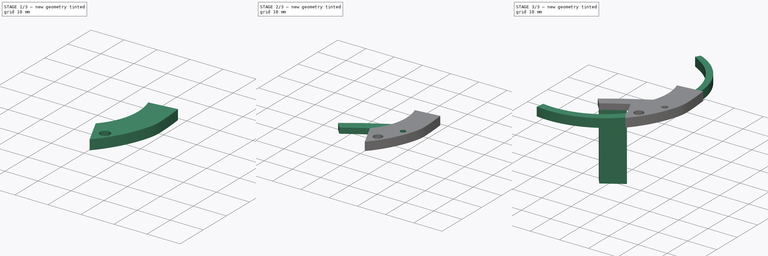
[diagram: build sequence overview — one tinted view per stage of 3, left to right]
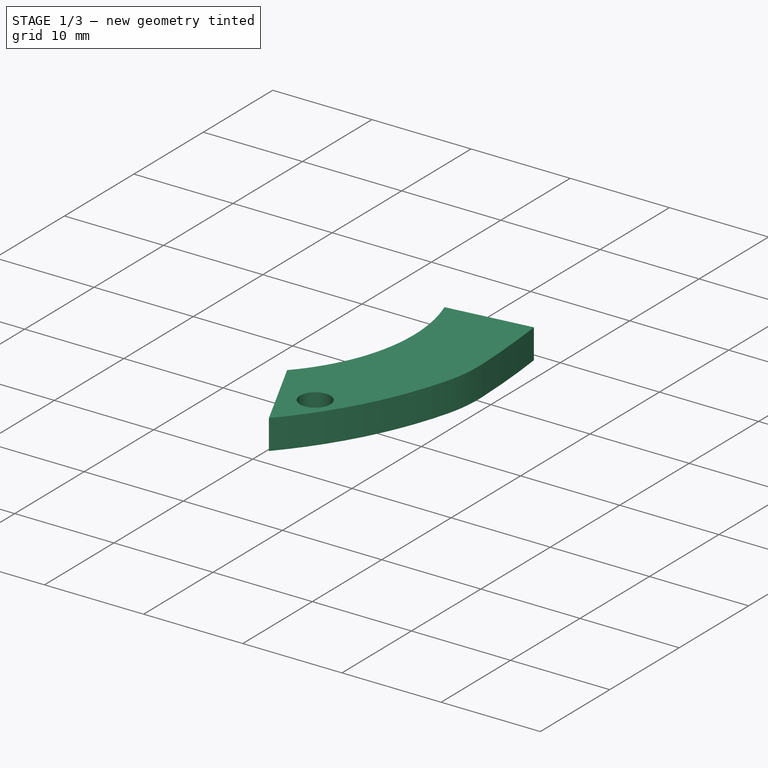
[diagram: stage 1 of 3 — iso view after this stage's code; geometry added in this stage tinted green]
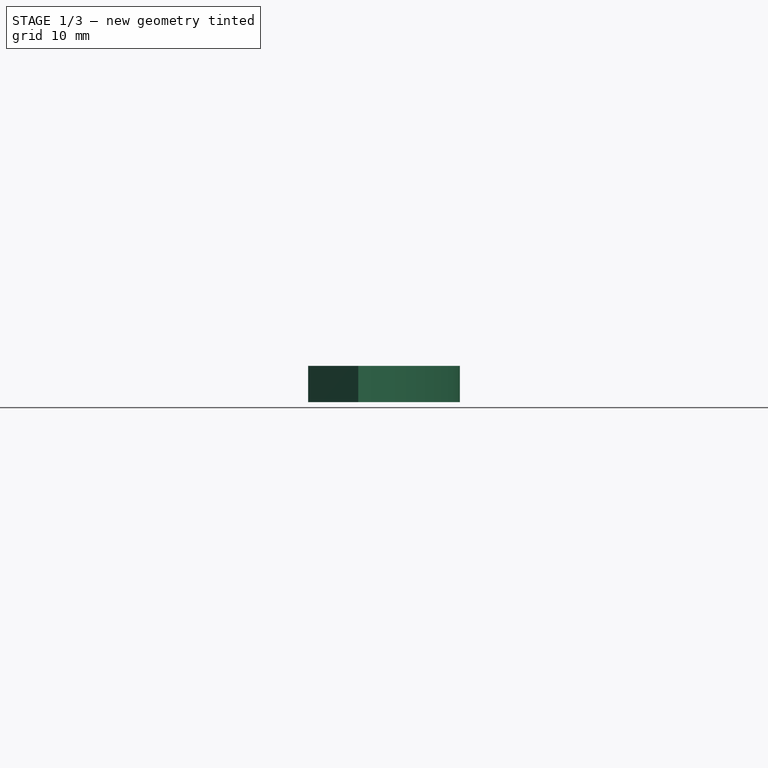
[diagram: stage 1 of 3 — front view after this stage's code; geometry added in this stage tinted green]
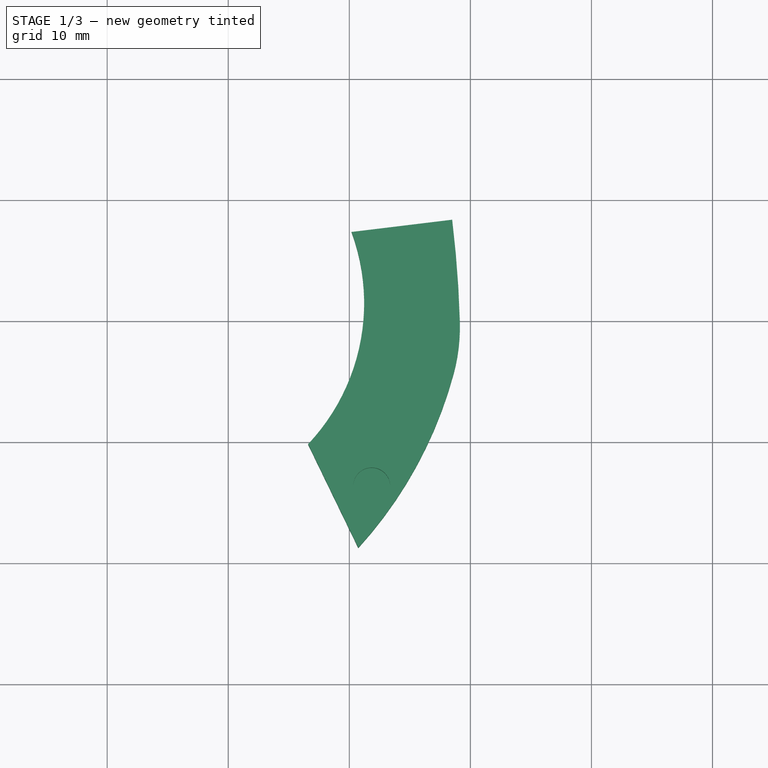
[diagram: stage 1 of 3 — top view after this stage's code; geometry added in this stage tinted green]
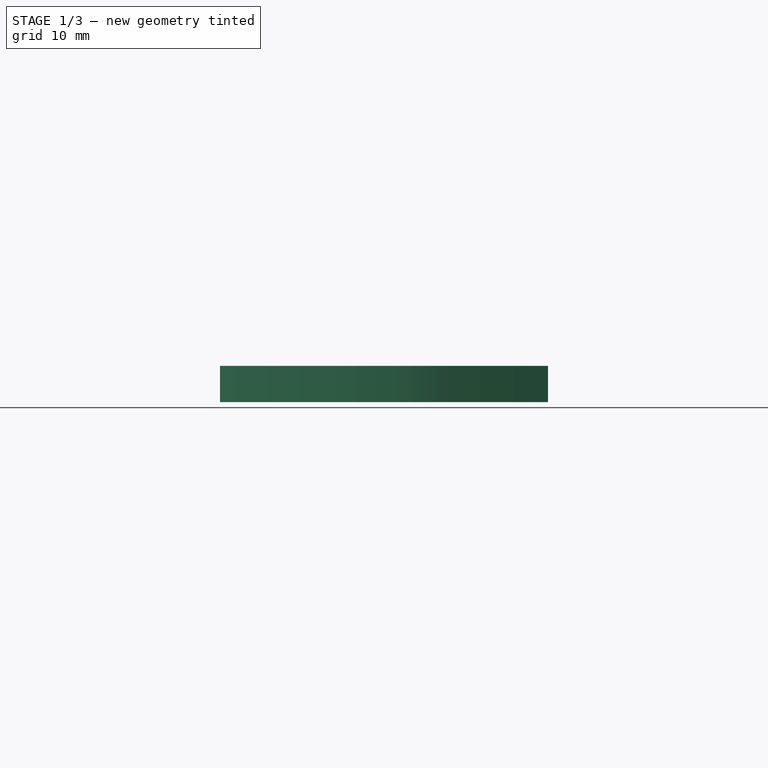
[diagram: stage 1 of 3 — right view after this stage's code; geometry added in this stage tinted green]
FCSTD DOCUMENT  (FreeCAD 0.21R33771 (Git))
Label: new_aperture_hand_7
License: All rights reserved
LicenseURL: http://en.wikipedia.org/wiki/All_rights_reserved
objects: Sketcher::SketchObject×7, PartDesign::Pad×4, PartDesign::Pocket×3, Image::ImagePlane×1, PartDesign::Body×1
note: 22 computed .brp shape members not serialized (recipe doc carries the construction recipe); baked Part::Feature solids carry a one-line shape summary decoded from their .brp

FEATURE [Sketcher::SketchObject] Sketch
  FullyConstrained = false
  MapMode = 5
  Support = -> [XY_Plane]
  sketch-geometry (6):
    g0: LineSegment StartX=20.1827 StartY=7.34692 StartZ=0 EndX=28.4959 EndY=8.3592 EndZ=0
    g1: ArcOfCircle CenterX=-62.7168 CenterY=-2.74758 CenterZ=0 NormalX=0 NormalY=0 NormalZ=1 AngleXU=0 Radius=91.8865 StartAngle=0.0297337 EndAngle=0.121171
    g2: ArcOfCircle CenterX=14.2037 CenterY=-0.459773 CenterZ=0 NormalX=0 NormalY=0 NormalZ=1 AngleXU=0 Radius=14.932 StartAngle=6.01889 EndAngle=6.31292
    g3: ArcOfCircle CenterX=-5.09405 CenterY=4.76261 CenterZ=0 NormalX=0 NormalY=0 NormalZ=1 AngleXU=0 Radius=34.9239 StartAngle=5.54514 EndAngle=6.01889
    g4: ArcOfCircle CenterX=4.2118 CenterY=1.48361 CenterZ=0 NormalX=0 NormalY=0 NormalZ=1 AngleXU=0 Radius=17.0132 StartAngle=5.5276 EndAngle=6.63503
    g5: LineSegment StartX=16.5952 StartY=-10.1826 StartZ=0 EndX=20.7422 EndY=-18.7356 EndZ=0
  constraints (6):
    c: Perpendicular(g0,g1) = 1.5708
    c: Tangent(g1,g2) = -1.5708
    c: Tangent(g2,g3) = -1.5708
    c: Coincident(g4,g0)
    c: Coincident(g5,g4)
    c: Coincident(g5,g3)
FEATURE [Image::ImagePlane] PXL_20241118_230027989
  XSize = 121.033
  YSize = 91.1307
FEATURE [PartDesign::Pad] Pad
  Direction = (0,0,1)
  Length = 3
  Length2 = 10
  Profile = -> Sketch
  ReferenceAxis = -> Sketch [N_Axis]
  Type = 0
FEATURE [Sketcher::SketchObject] Sketch001
  FullyConstrained = false
  MapMode = 5
  Support = -> [XY_Plane]
  sketch-geometry (1):
    g0: Circle CenterX=21.8259 CenterY=-13.6833 CenterZ=0 NormalX=0 NormalY=0 NormalZ=1 AngleXU=0 Radius=1.06141
FEATURE [Sketcher::SketchObject] Sketch002
  AttachmentOffset = pos=(0,0,3) rot=(0,0,1;0rad)
  FullyConstrained = false
  MapMode = 5
  Placement = pos=(0,0,3) rot=(0,0,1;0rad)
  Support = -> [XY_Plane]
  sketch-geometry (1):
    g0: Circle CenterX=21.8468 CenterY=-13.6429 CenterZ=0 NormalX=0 NormalY=0 NormalZ=1 AngleXU=0 Radius=1.52775
FEATURE [PartDesign::Pocket] Pocket001
  BaseFeature = -> Pad
  Direction = (0,0,-1)
  Length = 2
  Length2 = 5
  Profile = -> Sketch002
  ReferenceAxis = -> Sketch002 [N_Axis]
  Type = 0
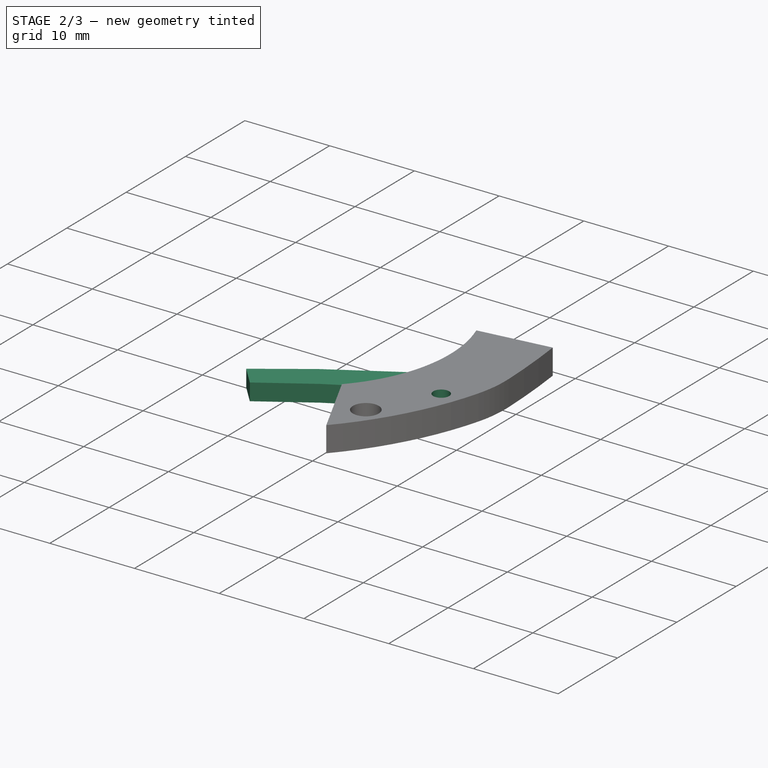
[diagram: stage 2 of 3 — iso view after this stage's code; geometry added in this stage tinted green]
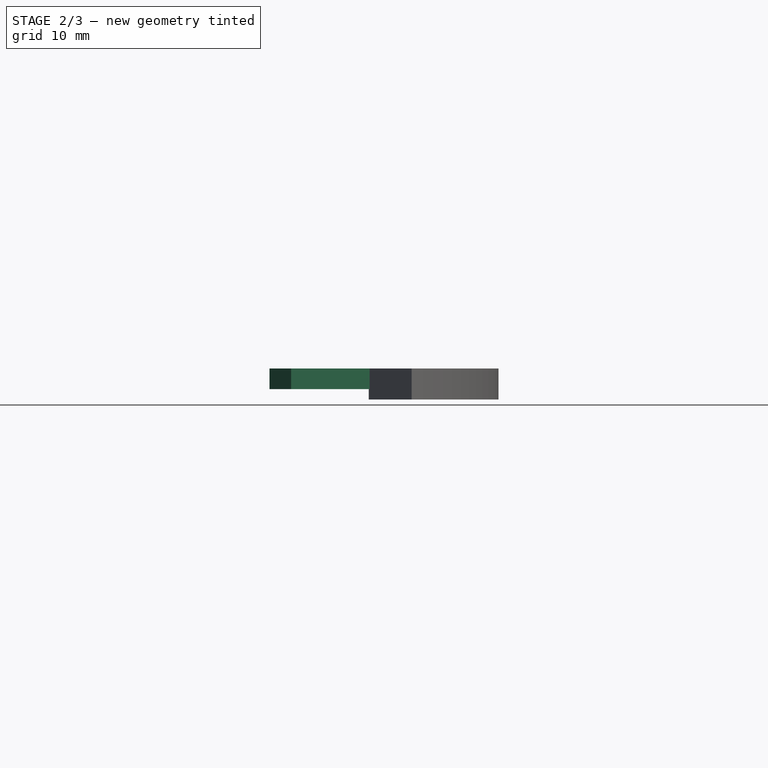
[diagram: stage 2 of 3 — front view after this stage's code; geometry added in this stage tinted green]
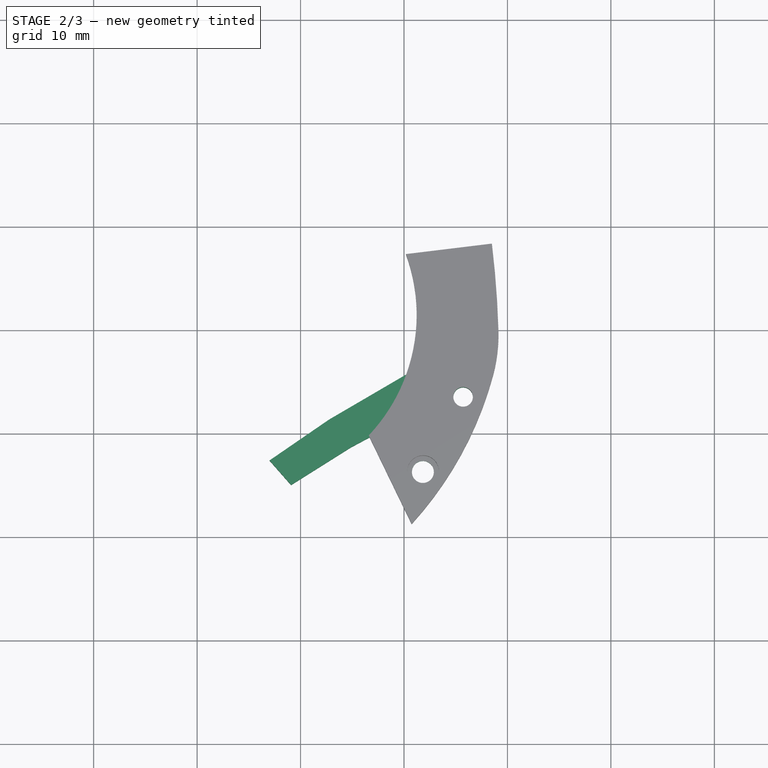
[diagram: stage 2 of 3 — top view after this stage's code; geometry added in this stage tinted green]
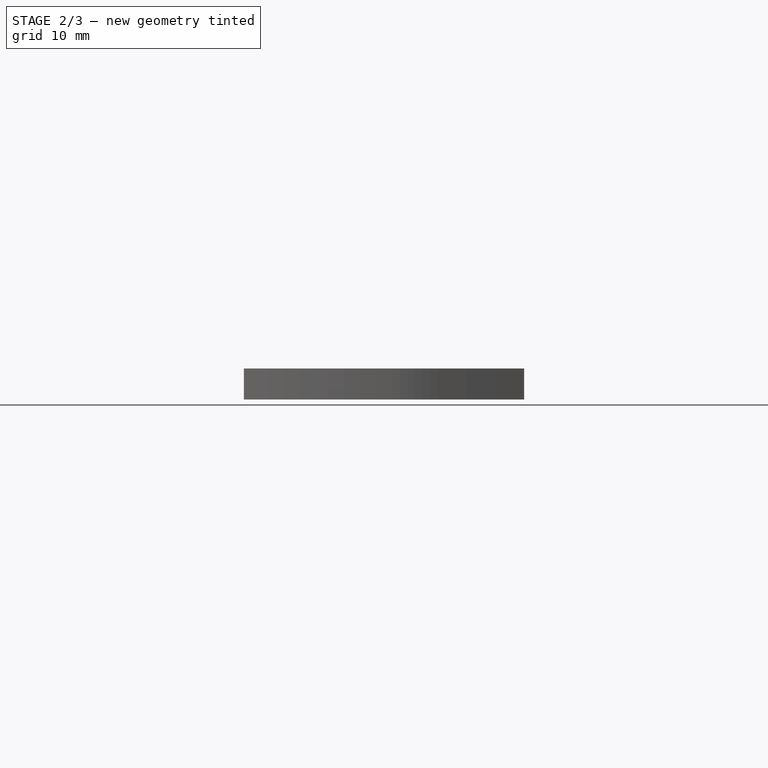
[diagram: stage 2 of 3 — right view after this stage's code; geometry added in this stage tinted green]
FEATURE [Sketcher::SketchObject] Sketch003
  FullyConstrained = false
  MapMode = 5
  Support = -> [XY_Plane]
  sketch-geometry (1):
    g0: Circle CenterX=25.7123 CenterY=-6.46037 CenterZ=0 NormalX=0 NormalY=0 NormalZ=1 AngleXU=0 Radius=0.944493
FEATURE [PartDesign::Pocket] Pocket002
  BaseFeature = -> Pocket001
  Direction = (0,0,-1)
  Length = 0
  Length2 = 5
  Profile = -> Sketch003
  ReferenceAxis = -> Sketch003 [N_Axis]
  Type = 3
  UpToFace = -> Pocket001 [Face5]
FEATURE [Sketcher::SketchObject] Sketch008
  FullyConstrained = false
  MapMode = 5
  Placement = pos=(0,0,3) rot=(0,0,1;0rad)
  sketch-geometry (6):
    g0: LineSegment StartX=7.00149 StartY=-12.6021 StartZ=0 EndX=9.08626 EndY=-14.9748 EndZ=0
    g1: LineSegment StartX=9.08626 StartY=-14.9748 StartZ=0 EndX=14.8557 EndY=-11.3454 EndZ=0
    g2: LineSegment StartX=14.8557 StartY=-11.3454 StartZ=0 EndX=22.7718 EndY=-7.10086 EndZ=0
    g3: LineSegment StartX=22.7718 StartY=-7.10086 StartZ=0 EndX=20.944 EndY=-3.86693 EndZ=0
    g4: LineSegment StartX=20.944 StartY=-3.86693 StartZ=0 EndX=12.7508 EndY=-8.65406 EndZ=0
    g5: LineSegment StartX=12.7508 StartY=-8.65406 StartZ=0 EndX=7.00149 EndY=-12.6021 EndZ=0
  constraints (6):
    c: Coincident(g0,g1)
    c: Coincident(g1,g2)
    c: Coincident(g2,g3)
    c: Coincident(g3,g4)
    c: Coincident(g4,g5)
    c: Coincident(g5,g0)
FEATURE [PartDesign::Pad] Pad004
  BaseFeature = -> Pocket002
  Direction = (0,0,-1)
  Length = 2
  Length2 = 10
  Profile = -> Sketch008
  ReferenceAxis = -> Sketch008 [N_Axis]
  Type = 0
  UseCustomVector = true
FEATURE [PartDesign::Pocket] Pocket
  BaseFeature = -> Pad004
  Direction = (0,0,-1)
  Length = 0
  Length2 = 5
  Profile = -> Sketch001
  ReferenceAxis = -> Sketch001 [N_Axis]
  Type = 3
  UpToFace = -> Pad004 [Face5]
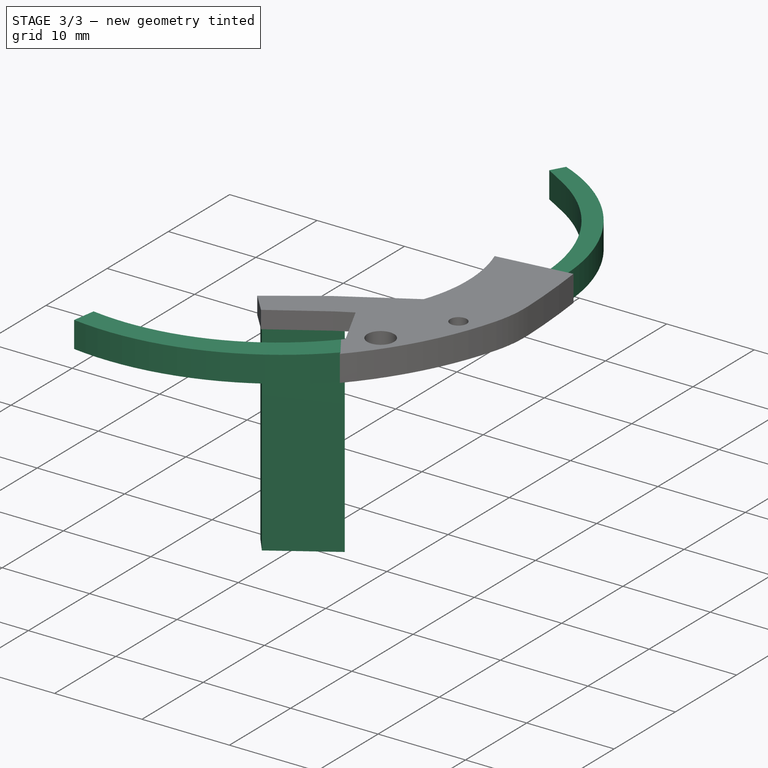
[diagram: stage 3 of 3 — iso view after this stage's code; geometry added in this stage tinted green]
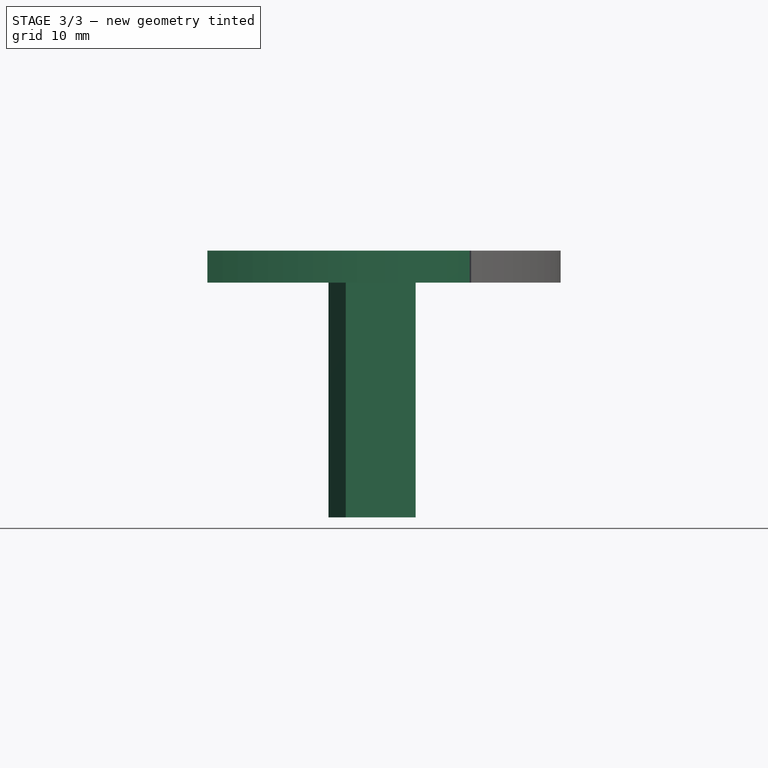
[diagram: stage 3 of 3 — front view after this stage's code; geometry added in this stage tinted green]
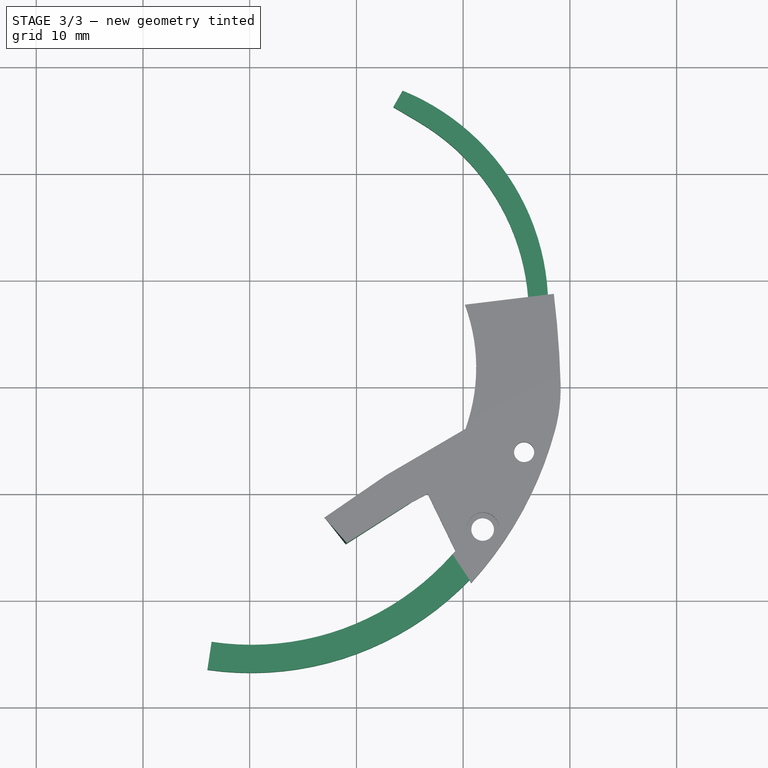
[diagram: stage 3 of 3 — top view after this stage's code; geometry added in this stage tinted green]
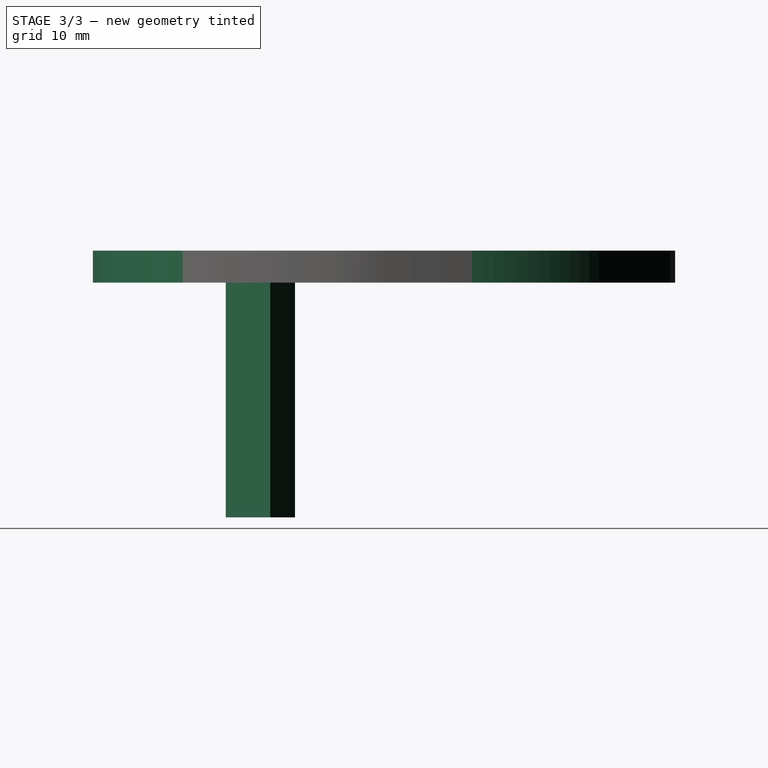
[diagram: stage 3 of 3 — right view after this stage's code; geometry added in this stage tinted green]
FEATURE [Sketcher::SketchObject] Sketch009
  FullyConstrained = false
  MapMode = 5
  Placement = pos=(0,0,3) rot=(0,0,1;0rad)
  Support = -> [Pocket]
  sketch-geometry (4):
    g0: LineSegment StartX=7.3786 StartY=-12.6425 StartZ=0 EndX=9.00304 EndY=-14.7019 EndZ=0
    g1: LineSegment StartX=9.00304 StartY=-14.7019 StartZ=0 EndX=15.552 EndY=-10.532 EndZ=0
    g2: LineSegment StartX=15.552 StartY=-10.532 StartZ=0 EndX=13.902 EndY=-8.21687 EndZ=0
    g3: LineSegment StartX=13.902 StartY=-8.21687 StartZ=0 EndX=7.3786 EndY=-12.6425 EndZ=0
  constraints (4):
    c: Coincident(g0,g1)
    c: Coincident(g1,g2)
    c: Coincident(g2,g3)
    c: Coincident(g3,g0)
FEATURE [PartDesign::Pad] Pad005
  BaseFeature = -> Pocket
  Direction = (0,0,-1)
  Length = 25
  Length2 = 10
  Profile = -> Sketch009
  ReferenceAxis = -> Sketch009 [N_Axis]
  Type = 0
  UseCustomVector = true
FEATURE [Sketcher::SketchObject] Sketch010
  FullyConstrained = false
  MapMode = 5
  Support = -> [XY_Plane]
  sketch-geometry (12):
    g0: LineSegment StartX=26.6482 StartY=0.890898 StartZ=0 EndX=26.0845 EndY=8.05968 EndZ=0
    g1: ArcOfCircle CenterX=5.19927 CenterY=6.41737 CenterZ=0 NormalX=0 NormalY=0 NormalZ=1 AngleXU=0 Radius=20.9497 StartAngle=0.0784736 EndAngle=1.03598
    g2: LineSegment StartX=15.877 StartY=24.4417 StartZ=0 EndX=13.4576 EndY=25.875 EndZ=0
    g3: LineSegment StartX=13.4576 StartY=25.875 StartZ=0 EndX=14.3265 EndY=27.406 EndZ=0
    g4: LineSegment StartX=27.9411 StartY=8.21638 StartZ=0 EndX=28.3058 EndY=0.811161 EndZ=0
    g5: LineSegment StartX=28.3058 StartY=0.811161 StartZ=0 EndX=26.6482 EndY=0.890898 EndZ=0
    g6: ArcOfCircle CenterX=0.12064 CenterY=1.28805 CenterZ=0 NormalX=0 NormalY=0 NormalZ=1 AngleXU=0 Radius=28.4395 StartAngle=4.56819 EndAngle=5.6022
    g7: LineSegment StartX=-3.96608 StartY=-26.8563 StartZ=0 EndX=-3.57133 EndY=-24.247 EndZ=0
    g8: ArcOfCircle CenterX=0.182173 CenterY=0.563289 CenterZ=0 NormalX=0 NormalY=0 NormalZ=1 AngleXU=0 Radius=25.0926 StartAngle=4.56224 EndAngle=5.56011
    g9: LineSegment StartX=18.996 StartY=-16.0403 StartZ=0 EndX=20.0749 EndY=-14.8178 EndZ=0
    g10: LineSegment StartX=20.0749 StartY=-14.8178 StartZ=0 EndX=22.2168 EndY=-16.6162 EndZ=0
    g11: ArcOfCircle CenterX=6.0932 CenterY=7.14024 CenterZ=0 NormalX=0 NormalY=0 NormalZ=1 AngleXU=0 Radius=21.8743 StartAngle=0.0492163 EndAngle=1.1849
  constraints (12):
    c: Tangent(g0,g1) = -1.5708
    c: Tangent(g1,g2) = -1.5708
    c: Coincident(g2,g3)
    c: Coincident(g4,g5)
    c: Coincident(g5,g0)
    c: Coincident(g6,g7)
    c: Perpendicular(g7,g8) = 4.71239
    c: Tangent(g8,g9) = -1.5708
    c: Coincident(g10,g9)
    c: Coincident(g10,g6)
    c: Tangent(g4,g11) = 1.5708
    c: Coincident(g11,g3)
FEATURE [PartDesign::Pad] Pad006
  BaseFeature = -> Pad005
  Direction = (0,0,1)
  Length = 3
  Length2 = 10
  Profile = -> Sketch010
  ReferenceAxis = -> Sketch010 [N_Axis]
  Type = 0
FEATURE [PartDesign::Body] Body
  Group = -> [Sketch,Pad,Sketch001,Sketch002,Pocket001,Sketch003,Pocket002,Sketch008,Pad004,Pocket,Sketch009,Pad005,Sketch010,Pad006]
  Origin = -> Origin
  Tip = -> Pad006
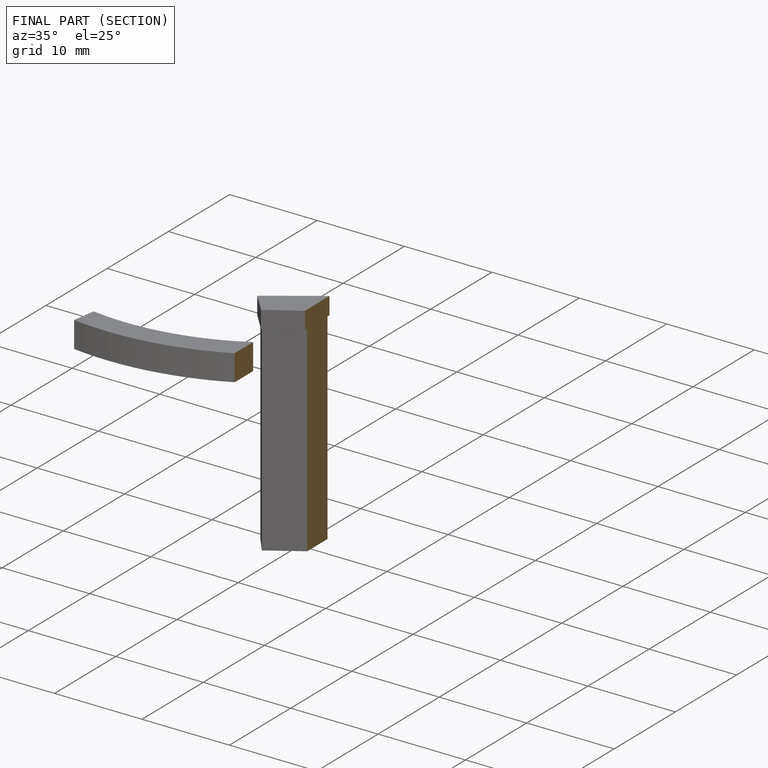
[diagram: finished part — half-section view (interior)]
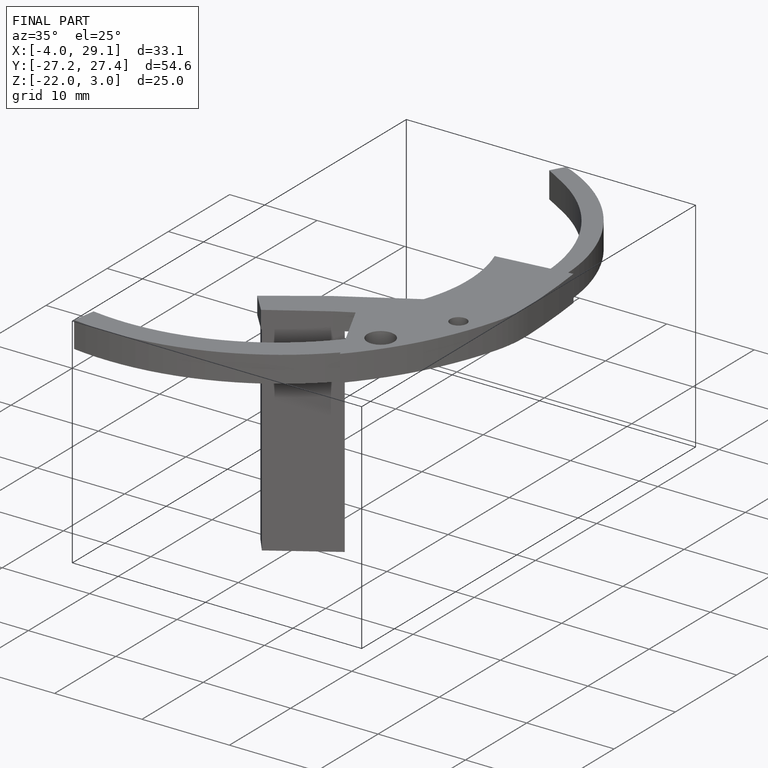
[diagram: finished part — iso view with bounding-box wireframe]
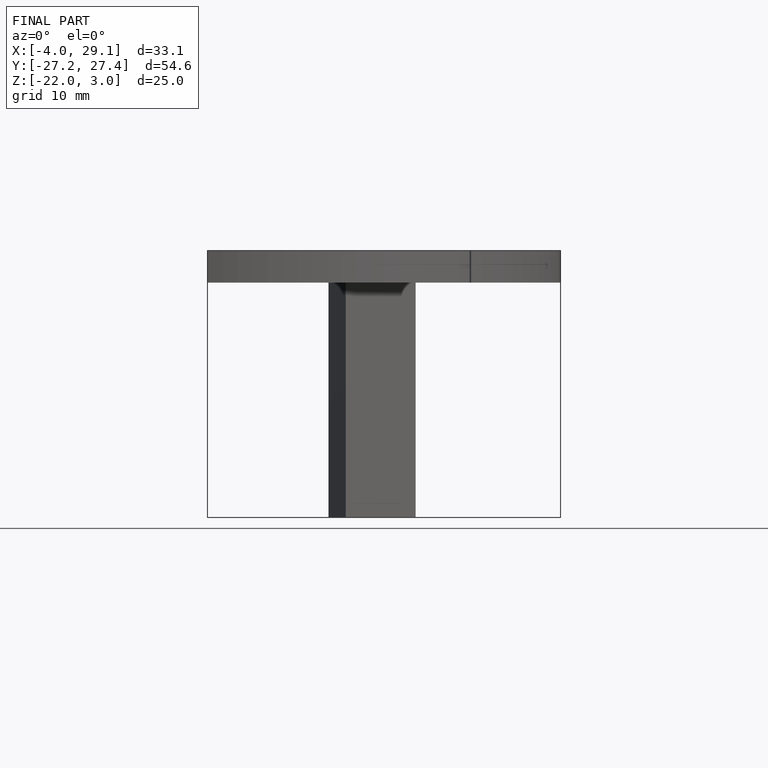
[diagram: finished part — front view with bounding-box wireframe]
